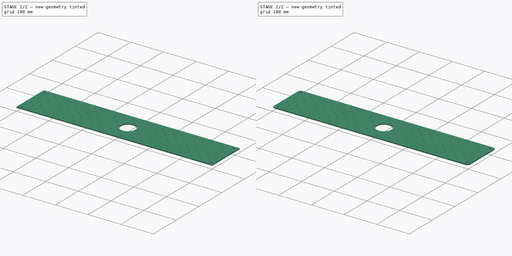
[diagram: build sequence overview — one tinted view per stage of 2, left to right]
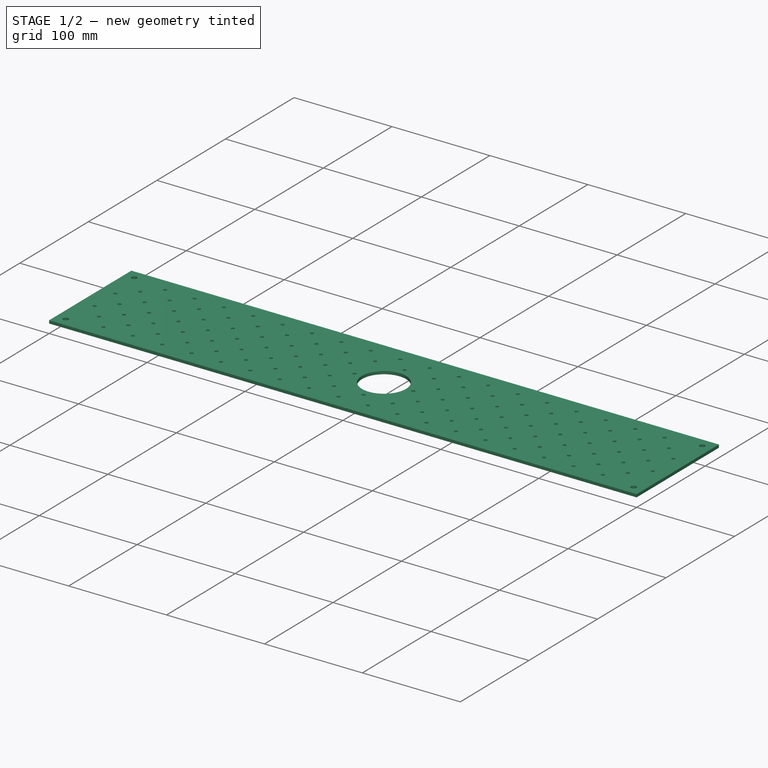
[diagram: stage 1 of 2 — iso view after this stage's code; geometry added in this stage tinted green]
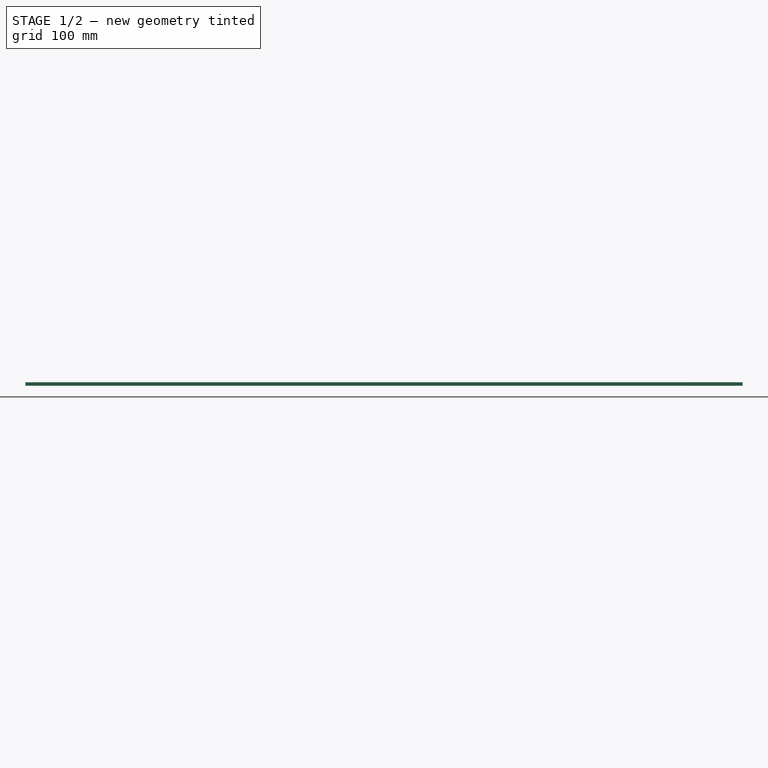
[diagram: stage 1 of 2 — front view after this stage's code; geometry added in this stage tinted green]
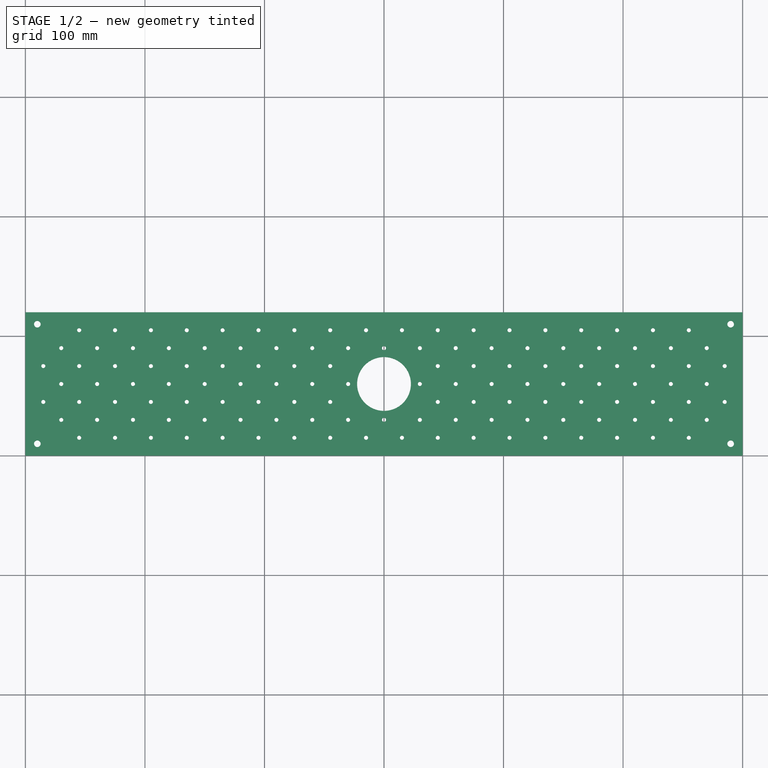
[diagram: stage 1 of 2 — top view after this stage's code; geometry added in this stage tinted green]
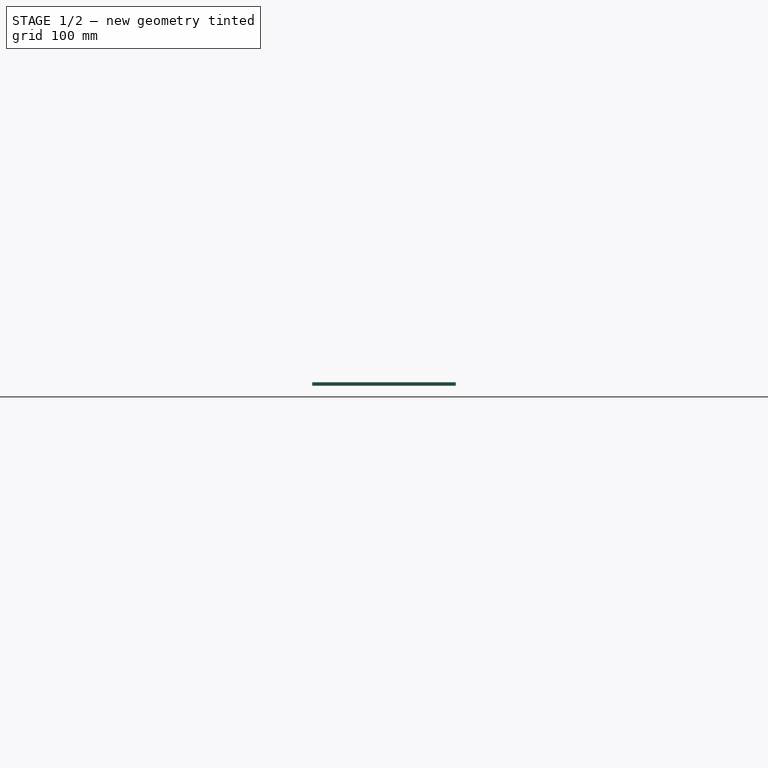
[diagram: stage 1 of 2 — right view after this stage's code; geometry added in this stage tinted green]
FCSTD DOCUMENT  (FreeCAD 0.19R24291 (Git))
Label: CSM-0001_staging-plate
License: All rights reserved
LicenseURL: http://en.wikipedia.org/wiki/All_rights_reserved
objects: Part::Part2DObjectPython×2, Sketcher::SketchObject×1, PartDesign::Pad×1, PartDesign::Chamfer×1, Spreadsheet::Sheet×1, PartDesign::Body×1
note: 8 computed .brp shape members not serialized (recipe doc carries the construction recipe); baked Part::Feature solids carry a one-line shape summary decoded from their .brp

FEATURE [Sketcher::SketchObject] Sketch
  FullyConstrained = false
  MapMode = 5
  Support = -> [XY_Plane]
  expr: Constraints[27] = <<dims>>.peek
  expr: Constraints[30] = <<dims>>.peek
  sketch-geometry (282):
    g0: LineSegment StartX=0 StartY=0 StartZ=0 EndX=600 EndY=0 EndZ=0
    g1: LineSegment StartX=600 StartY=0 StartZ=0 EndX=600 EndY=120 EndZ=0
    g2: LineSegment StartX=600 StartY=120 StartZ=0 EndX=0 EndY=120 EndZ=0
    g3: LineSegment StartX=0 StartY=120 StartZ=0 EndX=0 EndY=0 EndZ=0
    g4: Circle CenterX=10 CenterY=10 CenterZ=0 NormalX=0 NormalY=0 NormalZ=1 AngleXU=0 Radius=2.75
    g5: Circle CenterX=10 CenterY=110 CenterZ=0 NormalX=0 NormalY=0 NormalZ=1 AngleXU=0 Radius=2.75
    g6: Circle CenterX=590 CenterY=110 CenterZ=0 NormalX=0 NormalY=0 NormalZ=1 AngleXU=0 Radius=2.75
    g7: Circle CenterX=590 CenterY=10 CenterZ=0 NormalX=0 NormalY=0 NormalZ=1 AngleXU=0 Radius=2.75
    g8: Circle CenterX=15 CenterY=105 CenterZ=0 NormalX=0 NormalY=0 NormalZ=1 AngleXU=0 Radius=1.7
    g9: Circle CenterX=30 CenterY=90 CenterZ=0 NormalX=0 NormalY=0 NormalZ=1 AngleXU=0 Radius=1.7
    g10: Circle CenterX=300 CenterY=60 CenterZ=0 NormalX=0 NormalY=0 NormalZ=1 AngleXU=0 Radius=22.5
    g11: LineSegment StartX=300 StartY=120 StartZ=0 EndX=300 EndY=0 EndZ=0
    g12: Circle CenterX=45 CenterY=105 CenterZ=0 NormalX=0 NormalY=0 NormalZ=1 AngleXU=0 Radius=1.7
    g13: LineSegment StartX=15 StartY=105 StartZ=0 EndX=45 EndY=105 EndZ=0
    g14: Circle CenterX=75 CenterY=105 CenterZ=0 NormalX=0 NormalY=0 NormalZ=1 AngleXU=0 Radius=1.7
    g15: LineSegment StartX=45 StartY=105 StartZ=0 EndX=75 EndY=105 EndZ=0
    g16: Circle CenterX=105 CenterY=105 CenterZ=0 NormalX=0 NormalY=0 NormalZ=1 AngleXU=0 Radius=1.7
    g17: LineSegment StartX=75 StartY=105 StartZ=0 EndX=105 EndY=105 EndZ=0
    g18: Circle CenterX=135 CenterY=105 CenterZ=0 NormalX=0 NormalY=0 NormalZ=1 AngleXU=0 Radius=1.7
    g19: LineSegment StartX=105 StartY=105 StartZ=0 EndX=135 EndY=105 EndZ=0
    g20: Circle CenterX=165 CenterY=105 CenterZ=0 NormalX=0 NormalY=0 NormalZ=1 AngleXU=0 Radius=1.7
    g21: LineSegment StartX=135 StartY=105 StartZ=0 EndX=165 EndY=105 EndZ=0
    g22: Circle CenterX=195 CenterY=105 CenterZ=0 NormalX=0 NormalY=0 NormalZ=1 AngleXU=0 Radius=1.7
    g23: LineSegment StartX=165 StartY=105 StartZ=0 EndX=195 EndY=105 EndZ=0
    g24: Circle CenterX=225 CenterY=105 CenterZ=0 NormalX=0 NormalY=0 NormalZ=1 AngleXU=0 Radius=1.7
    g25: LineSegment StartX=195 StartY=105 StartZ=0 EndX=225 EndY=105 EndZ=0
    g26: Circle CenterX=255 CenterY=105 CenterZ=0 NormalX=0 NormalY=0 NormalZ=1 AngleXU=0 Radius=1.7
    g27: LineSegment StartX=225 StartY=105 StartZ=0 EndX=255 EndY=105 EndZ=0
    g28: Circle CenterX=285 CenterY=105 CenterZ=0 NormalX=0 NormalY=0 NormalZ=1 AngleXU=0 Radius=1.7
    g29: LineSegment StartX=255 StartY=105 StartZ=0 EndX=285 EndY=105 EndZ=0
    g30: Circle CenterX=315 CenterY=105 CenterZ=0 NormalX=0 NormalY=0 NormalZ=1 AngleXU=0 Radius=1.7
    g31: LineSegment StartX=285 StartY=105 StartZ=0 EndX=315 EndY=105 EndZ=0
    g32: Circle CenterX=345 CenterY=105 CenterZ=0 NormalX=0 NormalY=0 NormalZ=1 AngleXU=0 Radius=1.7
    g33: LineSegment StartX=315 StartY=105 StartZ=0 EndX=345 EndY=105 EndZ=0
    g34: Circle CenterX=375 CenterY=105 CenterZ=0 NormalX=0 NormalY=0 NormalZ=1 AngleXU=0 Radius=1.7
    g35: LineSegment StartX=345 StartY=105 StartZ=0 EndX=375 EndY=105 EndZ=0
    g36: Circle CenterX=405 CenterY=105 CenterZ=0 NormalX=0 NormalY=0 NormalZ=1 AngleXU=0 Radius=1.7
    g37: LineSegment StartX=375 StartY=105 StartZ=0 EndX=405 EndY=105 EndZ=0
    g38: Circle CenterX=435 CenterY=105 CenterZ=0 NormalX=0 NormalY=0 NormalZ=1 AngleXU=0 Radius=1.7
    g39: LineSegment StartX=405 StartY=105 StartZ=0 EndX=435 EndY=105 EndZ=0
    g40: Circle CenterX=465 CenterY=105 CenterZ=0 NormalX=0 NormalY=0 NormalZ=1 AngleXU=0 Radius=1.7
    g41: LineSegment StartX=435 StartY=105 StartZ=0 EndX=465 EndY=105 EndZ=0
    g42: Circle CenterX=495 CenterY=105 CenterZ=0 NormalX=0 NormalY=0 NormalZ=1 AngleXU=0 Radius=1.7
    g43: LineSegment StartX=465 StartY=105 StartZ=0 EndX=495 EndY=105 EndZ=0
    g44: Circle CenterX=525 CenterY=105 CenterZ=0 NormalX=0 NormalY=0 NormalZ=1 AngleXU=0 Radius=1.7
    g45: LineSegment StartX=495 StartY=105 StartZ=0 EndX=525 EndY=105 EndZ=0
    g46: Circle CenterX=555 CenterY=105 CenterZ=0 NormalX=0 NormalY=0 NormalZ=1 AngleXU=0 Radius=1.7
    g47: LineSegment StartX=525 StartY=105 StartZ=0 EndX=555 EndY=105 EndZ=0
    g48: Circle CenterX=585 CenterY=105 CenterZ=0 NormalX=0 NormalY=0 NormalZ=1 AngleXU=0 Radius=1.7
    g49: LineSegment StartX=555 StartY=105 StartZ=0 EndX=585 EndY=105 EndZ=0
    g50: Circle CenterX=15 CenterY=75 CenterZ=0 NormalX=0 NormalY=0 NormalZ=1 AngleXU=0 Radius=1.7
    g51: LineSegment StartX=15 StartY=105 StartZ=0 EndX=15 EndY=75 EndZ=0
    g52: Circle CenterX=45 CenterY=75 CenterZ=0 NormalX=0 NormalY=0 NormalZ=1 AngleXU=0 Radius=1.7
    g53: LineSegment StartX=15 StartY=75 StartZ=0 EndX=45 EndY=75 EndZ=0
    g54: Circle CenterX=75 CenterY=75 CenterZ=0 NormalX=0 NormalY=0 NormalZ=1 AngleXU=0 Radius=1.7
    g55: LineSegment StartX=45 StartY=75 StartZ=0 EndX=75 EndY=75 EndZ=0
    g56: Circle CenterX=105 CenterY=75 CenterZ=0 NormalX=0 NormalY=0 NormalZ=1 AngleXU=0 Radius=1.7
    g57: LineSegment StartX=75 StartY=75 StartZ=0 EndX=105 EndY=75 EndZ=0
    g58: Circle CenterX=135 CenterY=75 CenterZ=0 NormalX=0 NormalY=0 NormalZ=1 AngleXU=0 Radius=1.7
    g59: LineSegment StartX=105 StartY=75 StartZ=0 EndX=135 EndY=75 EndZ=0
    g60: Circle CenterX=165 CenterY=75 CenterZ=0 NormalX=0 NormalY=0 NormalZ=1 AngleXU=0 Radius=1.7
    g61: LineSegment StartX=135 StartY=75 StartZ=0 EndX=165 EndY=75 EndZ=0
    g62: Circle CenterX=195 CenterY=75 CenterZ=0 NormalX=0 NormalY=0 NormalZ=1 AngleXU=0 Radius=1.7
    g63: LineSegment StartX=165 StartY=75 StartZ=0 EndX=195 EndY=75 EndZ=0
    g64: Circle CenterX=225 CenterY=75 CenterZ=0 NormalX=0 NormalY=0 NormalZ=1 AngleXU=0 Radius=1.7
    g65: LineSegment StartX=195 StartY=75 StartZ=0 EndX=225 EndY=75 EndZ=0
    g66: Circle CenterX=255 CenterY=75 CenterZ=0 NormalX=0 NormalY=0 NormalZ=1 AngleXU=0 Radius=1.7
    g67: LineSegment StartX=225 StartY=75 StartZ=0 EndX=255 EndY=75 EndZ=0
    g68: Circle CenterX=285 CenterY=75 CenterZ=0 NormalX=0 NormalY=0 NormalZ=1 AngleXU=0 Radius=1.7
    g69: LineSegment StartX=255 StartY=75 StartZ=0 EndX=285 EndY=75 EndZ=0
    g70: Circle CenterX=315 CenterY=75 CenterZ=0 NormalX=0 NormalY=0 NormalZ=1 AngleXU=0 Radius=1.7
    g71: LineSegment StartX=285 StartY=75 StartZ=0 EndX=315 EndY=75 EndZ=0
    g72: Circle CenterX=345 CenterY=75 CenterZ=0 NormalX=0 NormalY=0 NormalZ=1 AngleXU=0 Radius=1.7
    g73: LineSegment StartX=315 StartY=75 StartZ=0 EndX=345 EndY=75 EndZ=0
    g74: Circle CenterX=375 CenterY=75 CenterZ=0 NormalX=0 NormalY=0 NormalZ=1 AngleXU=0 Radius=1.7
    g75: LineSegment StartX=345 StartY=75 StartZ=0 EndX=375 EndY=75 EndZ=0
    g76: Circle CenterX=405 CenterY=75 CenterZ=0 NormalX=0 NormalY=0 NormalZ=1 AngleXU=0 Radius=1.7
    g77: LineSegment StartX=375 StartY=75 StartZ=0 EndX=405 EndY=75 EndZ=0
    g78: Circle CenterX=435 CenterY=75 CenterZ=0 NormalX=0 NormalY=0 NormalZ=1 AngleXU=0 Radius=1.7
    g79: LineSegment StartX=405 StartY=75 StartZ=0 EndX=435 EndY=75 EndZ=0
    g80: Circle CenterX=465 CenterY=75 CenterZ=0 NormalX=0 NormalY=0 NormalZ=1 AngleXU=0 Radius=1.7
    g81: LineSegment StartX=435 StartY=75 StartZ=0 EndX=465 EndY=75 EndZ=0
    g82: Circle CenterX=495 CenterY=75 CenterZ=0 NormalX=0 NormalY=0 NormalZ=1 AngleXU=0 Radius=1.7
    g83: LineSegment StartX=465 StartY=75 StartZ=0 EndX=495 EndY=75 EndZ=0
    g84: Circle CenterX=525 CenterY=75 CenterZ=0 NormalX=0 NormalY=0 NormalZ=1 AngleXU=0 Radius=1.7
    g85: LineSegment StartX=495 StartY=75 StartZ=0 EndX=525 EndY=75 EndZ=0
    g86: Circle CenterX=555 CenterY=75 CenterZ=0 NormalX=0 NormalY=0 NormalZ=1 AngleXU=0 Radius=1.7
    g87: LineSegment StartX=525 StartY=75 StartZ=0 EndX=555 EndY=75 EndZ=0
    g88: Circle CenterX=585 CenterY=75 CenterZ=0 NormalX=0 NormalY=0 NormalZ=1 AngleXU=0 Radius=1.7
    g89: LineSegment StartX=555 StartY=75 StartZ=0 EndX=585 EndY=75 EndZ=0
    g90: Circle CenterX=15 CenterY=45 CenterZ=0 NormalX=0 NormalY=0 NormalZ=1 AngleXU=0 Radius=1.7
    g91: LineSegment StartX=15 StartY=75 StartZ=0 EndX=15 EndY=45 EndZ=0
    g92: Circle CenterX=45 CenterY=45 CenterZ=0 NormalX=0 NormalY=0 NormalZ=1 AngleXU=0 Radius=1.7
    g93: LineSegment StartX=15 StartY=45 StartZ=0 EndX=45 EndY=45 EndZ=0
    g94: Circle CenterX=75 CenterY=45 CenterZ=0 NormalX=0 NormalY=0 NormalZ=1 AngleXU=0 Radius=1.7
    g95: LineSegment StartX=45 StartY=45 StartZ=0 EndX=75 EndY=45 EndZ=0
    g96: Circle CenterX=105 CenterY=45 CenterZ=0 NormalX=0 NormalY=0 NormalZ=1 AngleXU=0 Radius=1.7
    g97: LineSegment StartX=75 StartY=45 StartZ=0 EndX=105 EndY=45 EndZ=0
    g98: Circle CenterX=135 CenterY=45 CenterZ=0 NormalX=0 NormalY=0 NormalZ=1 AngleXU=0 Radius=1.7
    g99: LineSegment StartX=105 StartY=45 StartZ=0 EndX=135 EndY=45 EndZ=0
    g100: Circle CenterX=165 CenterY=45 CenterZ=0 NormalX=0 NormalY=0 NormalZ=1 AngleXU=0 Radius=1.7
    g101: LineSegment StartX=135 StartY=45 StartZ=0 EndX=165 EndY=45 EndZ=0
    g102: Circle CenterX=195 CenterY=45 CenterZ=0 NormalX=0 NormalY=0 NormalZ=1 AngleXU=0 Radius=1.7
    g103: LineSegment StartX=165 StartY=45 StartZ=0 EndX=195 EndY=45 EndZ=0
    g104: Circle CenterX=225 CenterY=45 CenterZ=0 NormalX=0 NormalY=0 NormalZ=1 AngleXU=0 Radius=1.7
    g105: LineSegment StartX=195 StartY=45 StartZ=0 EndX=225 EndY=45 EndZ=0
    g106: Circle CenterX=255 CenterY=45 CenterZ=0 NormalX=0 NormalY=0 NormalZ=1 AngleXU=0 Radius=1.7
    g107: LineSegment StartX=225 StartY=45 StartZ=0 EndX=255 EndY=45 EndZ=0
    g108: Circle CenterX=285 CenterY=45 CenterZ=0 NormalX=0 NormalY=0 NormalZ=1 AngleXU=0 Radius=1.7
    g109: LineSegment StartX=255 StartY=45 StartZ=0 EndX=285 EndY=45 EndZ=0
    g110: Circle CenterX=315 CenterY=45 CenterZ=0 NormalX=0 NormalY=0 NormalZ=1 AngleXU=0 Radius=1.7
    g111: LineSegment StartX=285 StartY=45 StartZ=0 EndX=315 EndY=45 EndZ=0
    g112: Circle CenterX=345 CenterY=45 CenterZ=0 NormalX=0 NormalY=0 NormalZ=1 AngleXU=0 Radius=1.7
    g113: LineSegment StartX=315 StartY=45 StartZ=0 EndX=345 EndY=45 EndZ=0
    g114: Circle CenterX=375 CenterY=45 CenterZ=0 NormalX=0 NormalY=0 NormalZ=1 AngleXU=0 Radius=1.7
    g115: LineSegment StartX=345 StartY=45 StartZ=0 EndX=375 EndY=45 EndZ=0
    g116: Circle CenterX=405 CenterY=45 CenterZ=0 NormalX=0 NormalY=0 NormalZ=1 AngleXU=0 Radius=1.7
    g117: LineSegment StartX=375 StartY=45 StartZ=0 EndX=405 EndY=45 EndZ=0
    g118: Circle CenterX=435 CenterY=45 CenterZ=0 NormalX=0 NormalY=0 NormalZ=1 AngleXU=0 Radius=1.7
    g119: LineSegment StartX=405 StartY=45 StartZ=0 EndX=435 EndY=45 EndZ=0
    g120: Circle CenterX=465 CenterY=45 CenterZ=0 NormalX=0 NormalY=0 NormalZ=1 AngleXU=0 Radius=1.7
    g121: LineSegment StartX=435 StartY=45 StartZ=0 EndX=465 EndY=45 EndZ=0
    g122: Circle CenterX=495 CenterY=45 CenterZ=0 NormalX=0 NormalY=0 NormalZ=1 AngleXU=0 Radius=1.7
    g123: LineSegment StartX=465 StartY=45 StartZ=0 EndX=495 EndY=45 EndZ=0
    g124: Circle CenterX=525 CenterY=45 CenterZ=0 NormalX=0 NormalY=0 NormalZ=1 AngleXU=0 Radius=1.7
    g125: LineSegment StartX=495 StartY=45 StartZ=0 EndX=525 EndY=45 EndZ=0
    g126: Circle CenterX=555 CenterY=45 CenterZ=0 NormalX=0 NormalY=0 NormalZ=1 AngleXU=0 Radius=1.7
    g127: LineSegment StartX=525 StartY=45 StartZ=0 EndX=555 EndY=45 EndZ=0
    g128: Circle CenterX=585 CenterY=45 CenterZ=0 NormalX=0 NormalY=0 NormalZ=1 AngleXU=0 Radius=1.7
    g129: LineSegment StartX=555 StartY=45 StartZ=0 EndX=585 EndY=45 EndZ=0
    g130: Circle CenterX=15 CenterY=15 CenterZ=0 NormalX=0 NormalY=0 NormalZ=1 AngleXU=0 Radius=1.7
    g131: LineSegment StartX=15 StartY=45 StartZ=0 EndX=15 EndY=15 EndZ=0
    g132: Circle CenterX=45 CenterY=15 CenterZ=0 NormalX=0 NormalY=0 NormalZ=1 AngleXU=0 Radius=1.7
    g133: LineSegment StartX=15 StartY=15 StartZ=0 EndX=45 EndY=15 EndZ=0
    g134: Circle CenterX=75 CenterY=15 CenterZ=0 NormalX=0 NormalY=0 NormalZ=1 AngleXU=0 Radius=1.7
    g135: LineSegment StartX=45 StartY=15 StartZ=0 EndX=75 EndY=15 EndZ=0
    g136: Circle CenterX=105 CenterY=15 CenterZ=0 NormalX=0 NormalY=0 NormalZ=1 AngleXU=0 Radius=1.7
    g137: LineSegment StartX=75 StartY=15 StartZ=0 EndX=105 EndY=15 EndZ=0
    g138: Circle CenterX=135 CenterY=15 CenterZ=0 NormalX=0 NormalY=0 NormalZ=1 AngleXU=0 Radius=1.7
    g139: LineSegment StartX=105 StartY=15 StartZ=0 EndX=135 EndY=15 EndZ=0
    g140: Circle CenterX=165 CenterY=15 CenterZ=0 NormalX=0 NormalY=0 NormalZ=1 AngleXU=0 Radius=1.7
    g141: LineSegment StartX=135 StartY=15 StartZ=0 EndX=165 EndY=15 EndZ=0
    g142: Circle CenterX=195 CenterY=15 CenterZ=0 NormalX=0 NormalY=0 NormalZ=1 AngleXU=0 Radius=1.7
    g143: LineSegment StartX=165 StartY=15 StartZ=0 EndX=195 EndY=15 EndZ=0
    g144: Circle CenterX=225 CenterY=15 CenterZ=0 NormalX=0 NormalY=0 NormalZ=1 AngleXU=0 Radius=1.7
    g145: LineSegment StartX=195 StartY=15 StartZ=0 EndX=225 EndY=15 EndZ=0
    g146: Circle CenterX=255 CenterY=15 CenterZ=0 NormalX=0 NormalY=0 NormalZ=1 AngleXU=0 Radius=1.7
    g147: LineSegment StartX=225 StartY=15 StartZ=0 EndX=255 EndY=15 EndZ=0
    g148: Circle CenterX=285 CenterY=15 CenterZ=0 NormalX=0 NormalY=0 NormalZ=1 AngleXU=0 Radius=1.7
    g149: LineSegment StartX=255 StartY=15 StartZ=0 EndX=285 EndY=15 EndZ=0
    g150: Circle CenterX=315 CenterY=15 CenterZ=0 NormalX=0 NormalY=0 NormalZ=1 AngleXU=0 Radius=1.7
    g151: LineSegment StartX=285 StartY=15 StartZ=0 EndX=315 EndY=15 EndZ=0
    g152: Circle CenterX=345 CenterY=15 CenterZ=0 NormalX=0 NormalY=0 NormalZ=1 AngleXU=0 Radius=1.7
    g153: LineSegment StartX=315 StartY=15 StartZ=0 EndX=345 EndY=15 EndZ=0
    g154: Circle CenterX=375 CenterY=15 CenterZ=0 NormalX=0 NormalY=0 NormalZ=1 AngleXU=0 Radius=1.7
    g155: LineSegment StartX=345 StartY=15 StartZ=0 EndX=375 EndY=15 EndZ=0
    g156: Circle CenterX=405 CenterY=15 CenterZ=0 NormalX=0 NormalY=0 NormalZ=1 AngleXU=0 Radius=1.7
    g157: LineSegment StartX=375 StartY=15 StartZ=0 EndX=405 EndY=15 EndZ=0
    g158: Circle CenterX=435 CenterY=15 CenterZ=0 NormalX=0 NormalY=0 NormalZ=1 AngleXU=0 Radius=1.7
    g159: LineSegment StartX=405 StartY=15 StartZ=0 EndX=435 EndY=15 EndZ=0
    g160: Circle CenterX=465 CenterY=15 CenterZ=0 NormalX=0 NormalY=0 NormalZ=1 AngleXU=0 Radius=1.7
    g161: LineSegment StartX=435 StartY=15 StartZ=0 EndX=465 EndY=15 EndZ=0
    g162: Circle CenterX=495 CenterY=15 CenterZ=0 NormalX=0 NormalY=0 NormalZ=1 AngleXU=0 Radius=1.7
    g163: LineSegment StartX=465 StartY=15 StartZ=0 EndX=495 EndY=15 EndZ=0
    g164: Circle CenterX=525 CenterY=15 CenterZ=0 NormalX=0 NormalY=0 NormalZ=1 AngleXU=0 Radius=1.7
    g165: LineSegment StartX=495 StartY=15 StartZ=0 EndX=525 EndY=15 EndZ=0
    g166: Circle CenterX=555 CenterY=15 CenterZ=0 NormalX=0 NormalY=0 NormalZ=1 AngleXU=0 Radius=1.7
    g167: LineSegment StartX=525 StartY=15 StartZ=0 EndX=555 EndY=15 EndZ=0
    g168: Circle CenterX=585 CenterY=15 CenterZ=0 NormalX=0 NormalY=0 NormalZ=1 AngleXU=0 Radius=1.7
    g169: LineSegment StartX=555 StartY=15 StartZ=0 EndX=585 EndY=15 EndZ=0
    g170: Circle CenterX=60 CenterY=90 CenterZ=0 NormalX=0 NormalY=0 NormalZ=1 AngleXU=0 Radius=1.7
    g171: LineSegment StartX=30 StartY=90 StartZ=0 EndX=60 EndY=90 EndZ=0
    g172: Circle CenterX=90 CenterY=90 CenterZ=0 NormalX=0 NormalY=0 NormalZ=1 AngleXU=0 Radius=1.7
    g173: LineSegment StartX=60 StartY=90 StartZ=0 EndX=90 EndY=90 EndZ=0
    g174: Circle CenterX=120 CenterY=90 CenterZ=0 NormalX=0 NormalY=0 NormalZ=1 AngleXU=0 Radius=1.7
    g175: LineSegment StartX=90 StartY=90 StartZ=0 EndX=120 EndY=90 EndZ=0
    g176: Circle CenterX=150 CenterY=90 CenterZ=0 NormalX=0 NormalY=0 NormalZ=1 AngleXU=0 Radius=1.7
    g177: LineSegment StartX=120 StartY=90 StartZ=0 EndX=150 EndY=90 EndZ=0
    g178: Circle CenterX=180 CenterY=90 CenterZ=0 NormalX=0 NormalY=0 NormalZ=1 AngleXU=0 Radius=1.7
    g179: LineSegment StartX=150 StartY=90 StartZ=0 EndX=180 EndY=90 EndZ=0
    g180: Circle CenterX=210 CenterY=90 CenterZ=0 NormalX=0 NormalY=0 NormalZ=1 AngleXU=0 Radius=1.7
    g181: LineSegment StartX=180 StartY=90 StartZ=0 EndX=210 EndY=90 EndZ=0
    g182: Circle CenterX=240 CenterY=90 CenterZ=0 NormalX=0 NormalY=0 NormalZ=1 AngleXU=0 Radius=1.7
    g183: LineSegment StartX=210 StartY=90 StartZ=0 EndX=240 EndY=90 EndZ=0
    g184: Circle CenterX=270 CenterY=90 CenterZ=0 NormalX=0 NormalY=0 NormalZ=1 AngleXU=0 Radius=1.7
    g185: LineSegment StartX=240 StartY=90 StartZ=0 EndX=270 EndY=90 EndZ=0
    g186: Circle CenterX=300 CenterY=90 CenterZ=0 NormalX=0 NormalY=0 NormalZ=1 AngleXU=0 Radius=1.7
    g187: LineSegment StartX=270 StartY=90 StartZ=0 EndX=300 EndY=90 EndZ=0
    g188: Circle CenterX=330 CenterY=90 CenterZ=0 NormalX=0 NormalY=0 NormalZ=1 AngleXU=0 Radius=1.7
    g189: LineSegment StartX=300 StartY=90 StartZ=0 EndX=330 EndY=90 EndZ=0
    g190: Circle CenterX=360 CenterY=90 CenterZ=0 NormalX=0 NormalY=0 NormalZ=1 AngleXU=0 Radius=1.7
    g191: LineSegment StartX=330 StartY=90 StartZ=0 EndX=360 EndY=90 EndZ=0
    g192: Circle CenterX=390 CenterY=90 CenterZ=0 NormalX=0 NormalY=0 NormalZ=1 AngleXU=0 Radius=1.7
    g193: LineSegment StartX=360 StartY=90 StartZ=0 EndX=390 EndY=90 EndZ=0
    g194: Circle CenterX=420 CenterY=90 CenterZ=0 NormalX=0 NormalY=0 NormalZ=1 AngleXU=0 Radius=1.7
    g195: LineSegment StartX=390 StartY=90 StartZ=0 EndX=420 EndY=90 EndZ=0
    g196: Circle CenterX=450 CenterY=90 CenterZ=0 NormalX=0 NormalY=0 NormalZ=1 AngleXU=0 Radius=1.7
    g197: LineSegment StartX=420 StartY=90 StartZ=0 EndX=450 EndY=90 EndZ=0
    g198: Circle CenterX=480 CenterY=90 CenterZ=0 NormalX=0 NormalY=0 NormalZ=1 AngleXU=0 Radius=1.7
    g199: LineSegment StartX=450 StartY=90 StartZ=0 EndX=480 EndY=90 EndZ=0
    g200: Circle CenterX=510 CenterY=90 CenterZ=0 NormalX=0 NormalY=0 NormalZ=1 AngleXU=0 Radius=1.7
    g201: LineSegment StartX=480 StartY=90 StartZ=0 EndX=510 EndY=90 EndZ=0
    g202: Circle CenterX=540 CenterY=90 CenterZ=0 NormalX=0 NormalY=0 NormalZ=1 AngleXU=0 Radius=1.7
    g203: LineSegment StartX=510 StartY=90 StartZ=0 EndX=540 EndY=90 EndZ=0
    g204: Circle CenterX=570 CenterY=90 CenterZ=0 NormalX=0 NormalY=0 NormalZ=1 AngleXU=0 Radius=1.7
    g205: LineSegment StartX=540 StartY=90 StartZ=0 EndX=570 EndY=90 EndZ=0
    g206: Circle CenterX=30 CenterY=60 CenterZ=0 NormalX=0 NormalY=0 NormalZ=1 AngleXU=0 Radius=1.7
    g207: LineSegment StartX=30 StartY=90 StartZ=0 EndX=30 EndY=60 EndZ=0
    g208: Circle CenterX=60 CenterY=60 CenterZ=0 NormalX=0 NormalY=0 NormalZ=1 AngleXU=0 Radius=1.7
    g209: LineSegment StartX=30 StartY=60 StartZ=0 EndX=60 EndY=60 EndZ=0
    g210: Circle CenterX=90 CenterY=60 CenterZ=0 NormalX=0 NormalY=0 NormalZ=1 AngleXU=0 Radius=1.7
    g211: LineSegment StartX=60 StartY=60 StartZ=0 EndX=90 EndY=60 EndZ=0
    g212: Circle CenterX=120 CenterY=60 CenterZ=0 NormalX=0 NormalY=0 NormalZ=1 AngleXU=0 Radius=1.7
    g213: LineSegment StartX=90 StartY=60 StartZ=0 EndX=120 EndY=60 EndZ=0
    g214: Circle CenterX=150 CenterY=60 CenterZ=0 NormalX=0 NormalY=0 NormalZ=1 AngleXU=0 Radius=1.7
    g215: LineSegment StartX=120 StartY=60 StartZ=0 EndX=150 EndY=60 EndZ=0
    g216: Circle CenterX=180 CenterY=60 CenterZ=0 NormalX=0 NormalY=0 NormalZ=1 AngleXU=0 Radius=1.7
    g217: LineSegment StartX=150 StartY=60 StartZ=0 EndX=180 EndY=60 EndZ=0
    g218: Circle CenterX=210 CenterY=60 CenterZ=0 NormalX=0 NormalY=0 NormalZ=1 AngleXU=0 Radius=1.7
    g219: LineSegment StartX=180 StartY=60 StartZ=0 EndX=210 EndY=60 EndZ=0
    g220: Circle CenterX=240 CenterY=60 CenterZ=0 NormalX=0 NormalY=0 NormalZ=1 AngleXU=0 Radius=1.7
    g221: LineSegment StartX=210 StartY=60 StartZ=0 EndX=240 EndY=60 EndZ=0
    g222: Circle CenterX=270 CenterY=60 CenterZ=0 NormalX=0 NormalY=0 NormalZ=1 AngleXU=0 Radius=1.7
    g223: LineSegment StartX=240 StartY=60 StartZ=0 EndX=270 EndY=60 EndZ=0
    g224: Circle CenterX=300 CenterY=60 CenterZ=0 NormalX=0 NormalY=0 NormalZ=1 AngleXU=0 Radius=1.7
    g225: LineSegment StartX=270 StartY=60 StartZ=0 EndX=300 EndY=60 EndZ=0
    g226: Circle CenterX=330 CenterY=60 CenterZ=0 NormalX=0 NormalY=0 NormalZ=1 AngleXU=0 Radius=1.7
    g227: LineSegment StartX=300 StartY=60 StartZ=0 EndX=330 EndY=60 EndZ=0
    g228: Circle CenterX=360 CenterY=60 CenterZ=0 NormalX=0 NormalY=0 NormalZ=1 AngleXU=0 Radius=1.7
    g229: LineSegment StartX=330 StartY=60 StartZ=0 EndX=360 EndY=60 EndZ=0
    g230: Circle CenterX=390 CenterY=60 CenterZ=0 NormalX=0 NormalY=0 NormalZ=1 AngleXU=0 Radius=1.7
    g231: LineSegment StartX=360 StartY=60 StartZ=0 EndX=390 EndY=60 EndZ=0
    g232: Circle CenterX=420 CenterY=60 CenterZ=0 NormalX=0 NormalY=0 NormalZ=1 AngleXU=0 Radius=1.7
    g233: LineSegment StartX=390 StartY=60 StartZ=0 EndX=420 EndY=60 EndZ=0
    g234: Circle CenterX=450 CenterY=60 CenterZ=0 NormalX=0 NormalY=0 NormalZ=1 AngleXU=0 Radius=1.7
    g235: LineSegment StartX=420 StartY=60 StartZ=0 EndX=450 EndY=60 EndZ=0
    g236: Circle CenterX=480 CenterY=60 CenterZ=0 NormalX=0 NormalY=0 NormalZ=1 AngleXU=0 Radius=1.7
    g237: LineSegment StartX=450 StartY=60 StartZ=0 EndX=480 EndY=60 EndZ=0
    g238: Circle CenterX=510 CenterY=60 CenterZ=0 NormalX=0 NormalY=0 NormalZ=1 AngleXU=0 Radius=1.7
    g239: LineSegment StartX=480 StartY=60 StartZ=0 EndX=510 EndY=60 EndZ=0
    g240: Circle CenterX=540 CenterY=60 CenterZ=0 NormalX=0 NormalY=0 NormalZ=1 AngleXU=0 Radius=1.7
    g241: LineSegment StartX=510 StartY=60 StartZ=0 EndX=540 EndY=60 EndZ=0
    g242: Circle CenterX=570 CenterY=60 CenterZ=0 NormalX=0 NormalY=0 NormalZ=1 AngleXU=0 Radius=1.7
    g243: LineSegment StartX=540 StartY=60 StartZ=0 EndX=570 EndY=60 EndZ=0
    g244: Circle CenterX=30 CenterY=30 CenterZ=0 NormalX=0 NormalY=0 NormalZ=1 AngleXU=0 Radius=1.7
    g245: LineSegment StartX=30 StartY=60 StartZ=0 EndX=30 EndY=30 EndZ=0
    g246: Circle CenterX=60 CenterY=30 CenterZ=0 NormalX=0 NormalY=0 NormalZ=1 AngleXU=0 Radius=1.7
    g247: LineSegment StartX=30 StartY=30 StartZ=0 EndX=60 EndY=30 EndZ=0
    g248: Circle CenterX=90 CenterY=30 CenterZ=0 NormalX=0 NormalY=0 NormalZ=1 AngleXU=0 Radius=1.7
    g249: LineSegment StartX=60 StartY=30 StartZ=0 EndX=90 EndY=30 EndZ=0
    g250: Circle CenterX=120 CenterY=30 CenterZ=0 NormalX=0 NormalY=0 NormalZ=1 AngleXU=0 Radius=1.7
    g251: LineSegment StartX=90 StartY=30 StartZ=0 EndX=120 EndY=30 EndZ=0
    g252: Circle CenterX=150 CenterY=30 CenterZ=0 NormalX=0 NormalY=0 NormalZ=1 AngleXU=0 Radius=1.7
    g253: LineSegment StartX=120 StartY=30 StartZ=0 EndX=150 EndY=30 EndZ=0
    g254: Circle CenterX=180 CenterY=30 CenterZ=0 NormalX=0 NormalY=0 NormalZ=1 AngleXU=0 Radius=1.7
    g255: LineSegment StartX=150 StartY=30 StartZ=0 EndX=180 EndY=30 EndZ=0
    g256: Circle CenterX=210 CenterY=30 CenterZ=0 NormalX=0 NormalY=0 NormalZ=1 AngleXU=0 Radius=1.7
    g257: LineSegment StartX=180 StartY=30 StartZ=0 EndX=210 EndY=30 EndZ=0
    g258: Circle CenterX=240 CenterY=30 CenterZ=0 NormalX=0 NormalY=0 NormalZ=1 AngleXU=0 Radius=1.7
    g259: LineSegment StartX=210 StartY=30 StartZ=0 EndX=240 EndY=30 EndZ=0
    g260: Circle CenterX=270 CenterY=30 CenterZ=0 NormalX=0 NormalY=0 NormalZ=1 AngleXU=0 Radius=1.7
    g261: LineSegment StartX=240 StartY=30 StartZ=0 EndX=270 EndY=30 EndZ=0
    g262: Circle CenterX=300 CenterY=30 CenterZ=0 NormalX=0 NormalY=0 NormalZ=1 AngleXU=0 Radius=1.7
    g263: LineSegment StartX=270 StartY=30 StartZ=0 EndX=300 EndY=30 EndZ=0
    g264: Circle CenterX=330 CenterY=30 CenterZ=0 NormalX=0 NormalY=0 NormalZ=1 AngleXU=0 Radius=1.7
    g265: LineSegment StartX=300 StartY=30 StartZ=0 EndX=330 EndY=30 EndZ=0
    g266: Circle CenterX=360 CenterY=30 CenterZ=0 NormalX=0 NormalY=0 NormalZ=1 AngleXU=0 Radius=1.7
    g267: LineSegment StartX=330 StartY=30 StartZ=0 EndX=360 EndY=30 EndZ=0
    g268: Circle CenterX=390 CenterY=30 CenterZ=0 NormalX=0 NormalY=0 NormalZ=1 AngleXU=0 Radius=1.7
    g269: LineSegment StartX=360 StartY=30 StartZ=0 EndX=390 EndY=30 EndZ=0
    g270: Circle CenterX=420 CenterY=30 CenterZ=0 NormalX=0 NormalY=0 NormalZ=1 AngleXU=0 Radius=1.7
    g271: LineSegment StartX=390 StartY=30 StartZ=0 EndX=420 EndY=30 EndZ=0
    g272: Circle CenterX=450 CenterY=30 CenterZ=0 NormalX=0 NormalY=0 NormalZ=1 AngleXU=0 Radius=1.7
    g273: LineSegment StartX=420 StartY=30 StartZ=0 EndX=450 EndY=30 EndZ=0
    g274: Circle CenterX=480 CenterY=30 CenterZ=0 NormalX=0 NormalY=0 NormalZ=1 AngleXU=0 Radius=1.7
    g275: LineSegment StartX=450 StartY=30 StartZ=0 EndX=480 EndY=30 EndZ=0
    g276: Circle CenterX=510 CenterY=30 CenterZ=0 NormalX=0 NormalY=0 NormalZ=1 AngleXU=0 Radius=1.7
    g277: LineSegment StartX=480 StartY=30 StartZ=0 EndX=510 EndY=30 EndZ=0
    g278: Circle CenterX=540 CenterY=30 CenterZ=0 NormalX=0 NormalY=0 NormalZ=1 AngleXU=0 Radius=1.7
    g279: LineSegment StartX=510 StartY=30 StartZ=0 EndX=540 EndY=30 EndZ=0
    g280: Circle CenterX=570 CenterY=30 CenterZ=0 NormalX=0 NormalY=0 NormalZ=1 AngleXU=0 Radius=1.7
    g281: LineSegment StartX=540 StartY=30 StartZ=0 EndX=570 EndY=30 EndZ=0
  constraints (710):
    c: Coincident(g0,g1)
    c: Coincident(g1,g2)
    c: Coincident(g2,g3)
    c: Coincident(g3,g0)
    c: Horizontal(g0)
    c: Horizontal(g2)
    c: Vertical(g1)
    c: Vertical(g3)
    c: Coincident(g0,g-1)
    c: Distance(g2) = 600
    c: Distance(g3) = 120
    c: Radius(g4) = 2.75
    c: Distance(g4,g3) = 10
    c: Distance(g4,g0) = 10
    c: Radius(g5) = 2.75
    c: Distance(g5,g2) = 10
    c: Distance(g5,g3) = 10
    c: Radius(g6) = 2.75
    c: Distance(g6,g1) = 10
    c: Distance(g6,g2) = 10
    c: Radius(g7) = 2.75
    c: Distance(g7,g1) = 10
    c: Distance(g7,g0) = 10
    c: Distance(g8,g2) = 15
    c: Distance(g8,g3) = 15
    c: PointOnObject(g11,g2)
    c: PointOnObject(g11,g0)
    c: Diameter(g8) = 3.4
    c: DistanceX(g8,g9) = 15
    c: DistanceY(g9,g8) = 15
    c: Diameter(g9) = 3.4
    c: Diameter(g10) = 45
    c: DistanceY(g10,g2) = 60
    c: Symmetric(g2,g1,g11)
    c: PointOnObject(g10,g11)
    c: Equal(g8,g12) = 3.4
    c: Coincident(g8,g13)
    c: Coincident(g12,g13)
    c: Equal(g8,g14) = 3.4
    c: Coincident(g12,g15)
    c: Coincident(g14,g15)
    c: Equal(g13,g15)
    c: Parallel(g15,g13)
    c: Equal(g8,g16) = 3.4
    c: Coincident(g14,g17)
    c: Coincident(g16,g17)
    c: Equal(g13,g17)
    c: Parallel(g17,g13)
    c: Equal(g8,g18) = 3.4
    c: Coincident(g16,g19)
    c: Coincident(g18,g19)
    c: Equal(g13,g19)
    c: Parallel(g19,g13)
    c: Equal(g8,g20) = 3.4
    c: Coincident(g18,g21)
    c: Coincident(g20,g21)
    c: Equal(g13,g21)
    c: Parallel(g21,g13)
    c: Equal(g8,g22) = 3.4
    c: Coincident(g20,g23)
    c: Coincident(g22,g23)
    c: Equal(g13,g23)
    c: Parallel(g23,g13)
    c: Equal(g8,g24) = 3.4
    c: Coincident(g22,g25)
    c: Coincident(g24,g25)
    c: Equal(g13,g25)
    c: Parallel(g25,g13)
    c: Equal(g8,g26) = 3.4
    c: Coincident(g24,g27)
    c: Coincident(g26,g27)
    c: Equal(g13,g27)
    c: Parallel(g27,g13)
    c: Equal(g8,g28) = 3.4
    c: Coincident(g26,g29)
    c: Coincident(g28,g29)
    c: Equal(g13,g29)
    c: Parallel(g29,g13)
    c: Equal(g8,g30) = 3.4
    c: Coincident(g28,g31)
    c: Coincident(g30,g31)
    c: Equal(g13,g31)
    c: Parallel(g31,g13)
    c: Equal(g8,g32) = 3.4
    c: Coincident(g30,g33)
    c: Coincident(g32,g33)
    c: Equal(g13,g33)
    c: Parallel(g33,g13)
    c: Equal(g8,g34) = 3.4
    c: Coincident(g32,g35)
    c: Coincident(g34,g35)
    c: Equal(g13,g35)
    c: Parallel(g35,g13)
    c: Equal(g8,g36) = 3.4
    c: Coincident(g34,g37)
    c: Coincident(g36,g37)
    c: Equal(g13,g37)
    c: Parallel(g37,g13)
    c: Equal(g8,g38) = 3.4
    c: Coincident(g36,g39)
    c: Coincident(g38,g39)
    c: Equal(g13,g39)
    c: Parallel(g39,g13)
    c: Equal(g8,g40) = 3.4
    c: Coincident(g38,g41)
    c: Coincident(g40,g41)
    c: Equal(g13,g41)
    c: Parallel(g41,g13)
    c: Equal(g8,g42) = 3.4
    c: Coincident(g40,g43)
    c: Coincident(g42,g43)
    c: Equal(g13,g43)
    c: Parallel(g43,g13)
    c: Equal(g8,g44) = 3.4
    c: Coincident(g42,g45)
    c: Coincident(g44,g45)
    c: Equal(g13,g45)
    c: Parallel(g45,g13)
    c: Equal(g8,g46) = 3.4
    c: Coincident(g44,g47)
    c: Coincident(g46,g47)
    c: Equal(g13,g47)
    c: Parallel(g47,g13)
    c: Equal(g8,g48) = 3.4
    c: Coincident(g46,g49)
    c: Coincident(g48,g49)
    c: Equal(g13,g49)
    c: Parallel(g49,g13)
    c: Equal(g8,g50) = 3.4
    c: Coincident(g8,g51)
    c: Coincident(g50,g51)
    c: Equal(g51,g13)
    c: Perpendicular(g51,g13)
    c: Equal(g8,g52) = 3.4
    c: Coincident(g50,g53)
    c: Coincident(g52,g53)
    c: Equal(g13,g53)
    c: Parallel(g53,g13)
    c: Equal(g8,g54) = 3.4
    c: Coincident(g52,g55)
    c: Coincident(g54,g55)
    c: Equal(g13,g55)
    c: Parallel(g55,g13)
    c: Equal(g8,g56) = 3.4
    c: Coincident(g54,g57)
    c: Coincident(g56,g57)
    c: Equal(g13,g57)
    c: Parallel(g57,g13)
    c: Equal(g8,g58) = 3.4
    c: Coincident(g56,g59)
    c: Coincident(g58,g59)
    c: Equal(g13,g59)
    c: Parallel(g59,g13)
    c: Equal(g8,g60) = 3.4
    c: Coincident(g58,g61)
    c: Coincident(g60,g61)
    c: Equal(g13,g61)
    c: Parallel(g61,g13)
    c: Equal(g8,g62) = 3.4
    c: Coincident(g60,g63)
    c: Coincident(g62,g63)
    c: Equal(g13,g63)
    c: Parallel(g63,g13)
    c: Equal(g8,g64) = 3.4
    c: Coincident(g62,g65)
    c: Coincident(g64,g65)
    c: Equal(g13,g65)
    c: Parallel(g65,g13)
    c: Equal(g8,g66) = 3.4
    c: Coincident(g64,g67)
    c: Coincident(g66,g67)
    c: Equal(g13,g67)
    c: Parallel(g67,g13)
    c: Equal(g8,g68) = 3.4
    c: Coincident(g66,g69)
    c: Coincident(g68,g69)
    c: Equal(g13,g69)
    c: Parallel(g69,g13)
    c: Equal(g8,g70) = 3.4
    c: Coincident(g68,g71)
    c: Coincident(g70,g71)
    c: Equal(g13,g71)
    c: Parallel(g71,g13)
    c: Equal(g8,g72) = 3.4
    c: Coincident(g70,g73)
    c: Coincident(g72,g73)
    c: Equal(g13,g73)
    c: Parallel(g73,g13)
    c: Equal(g8,g74) = 3.4
    c: Coincident(g72,g75)
    c: Coincident(g74,g75)
    c: Equal(g13,g75)
    c: Parallel(g75,g13)
    c: Equal(g8,g76) = 3.4
    c: Coincident(g74,g77)
    c: Coincident(g76,g77)
    c: Equal(g13,g77)
    c: Parallel(g77,g13)
    c: Equal(g8,g78) = 3.4
    c: Coincident(g76,g79)
    c: Coincident(g78,g79)
    c: Equal(g13,g79)
    c: Parallel(g79,g13)
    c: Equal(g8,g80) = 3.4
    c: Coincident(g78,g81)
    c: Coincident(g80,g81)
    c: Equal(g13,g81)
    c: Parallel(g81,g13)
    c: Equal(g8,g82) = 3.4
    c: Coincident(g80,g83)
    c: Coincident(g82,g83)
    c: Equal(g13,g83)
    c: Parallel(g83,g13)
    c: Equal(g8,g84) = 3.4
    c: Coincident(g82,g85)
    c: Coincident(g84,g85)
    c: Equal(g13,g85)
    c: Parallel(g85,g13)
    c: Equal(g8,g86) = 3.4
    c: Coincident(g84,g87)
    c: Coincident(g86,g87)
    c: Equal(g13,g87)
    c: Parallel(g87,g13)
    c: Equal(g8,g88) = 3.4
    c: Coincident(g86,g89)
    c: Coincident(g88,g89)
    c: Equal(g13,g89)
    c: Parallel(g89,g13)
    c: Equal(g8,g90) = 3.4
    c: Coincident(g50,g91)
    c: Coincident(g90,g91)
    c: Equal(g51,g91)
    c: Perpendicular(g91,g13)
    c: Equal(g8,g92) = 3.4
    c: Coincident(g90,g93)
    c: Coincident(g92,g93)
    c: Equal(g13,g93)
    c: Parallel(g93,g13)
    c: Equal(g8,g94) = 3.4
    c: Coincident(g92,g95)
    c: Coincident(g94,g95)
    c: Equal(g13,g95)
    c: Parallel(g95,g13)
    c: Equal(g8,g96) = 3.4
    c: Coincident(g94,g97)
    c: Coincident(g96,g97)
    c: Equal(g13,g97)
    c: Parallel(g97,g13)
    c: Equal(g8,g98) = 3.4
    c: Coincident(g96,g99)
    c: Coincident(g98,g99)
    c: Equal(g13,g99)
    c: Parallel(g99,g13)
    c: Equal(g8,g100) = 3.4
    c: Coincident(g98,g101)
    c: Coincident(g100,g101)
    c: Equal(g13,g101)
    c: Parallel(g101,g13)
    c: Equal(g8,g102) = 3.4
    c: Coincident(g100,g103)
    c: Coincident(g102,g103)
    c: Equal(g13,g103)
    c: Parallel(g103,g13)
    c: Equal(g8,g104) = 3.4
    c: Coincident(g102,g105)
    c: Coincident(g104,g105)
    c: Equal(g13,g105)
    c: Parallel(g105,g13)
    c: Equal(g8,g106) = 3.4
    c: Coincident(g104,g107)
    c: Coincident(g106,g107)
    c: Equal(g13,g107)
    c: Parallel(g107,g13)
    c: Equal(g8,g108) = 3.4
    c: Coincident(g106,g109)
    c: Coincident(g108,g109)
    c: Equal(g13,g109)
    c: Parallel(g109,g13)
    c: Equal(g8,g110) = 3.4
    c: Coincident(g108,g111)
    c: Coincident(g110,g111)
    c: Equal(g13,g111)
    c: Parallel(g111,g13)
    c: Equal(g8,g112) = 3.4
    c: Coincident(g110,g113)
    c: Coincident(g112,g113)
    c: Equal(g13,g113)
    c: Parallel(g113,g13)
    c: Equal(g8,g114) = 3.4
    c: Coincident(g112,g115)
    c: Coincident(g114,g115)
    c: Equal(g13,g115)
    c: Parallel(g115,g13)
    c: Equal(g8,g116) = 3.4
    c: Coincident(g114,g117)
    c: Coincident(g116,g117)
    c: Equal(g13,g117)
    c: Parallel(g117,g13)
    c: Equal(g8,g118) = 3.4
    c: Coincident(g116,g119)
    c: Coincident(g118,g119)
    c: Equal(g13,g119)
    c: Parallel(g119,g13)
    c: Equal(g8,g120) = 3.4
    c: Coincident(g118,g121)
    c: Coincident(g120,g121)
    c: Equal(g13,g121)
    c: Parallel(g121,g13)
    c: Equal(g8,g122) = 3.4
    c: Coincident(g120,g123)
    c: Coincident(g122,g123)
    c: Equal(g13,g123)
    c: Parallel(g123,g13)
    c: Equal(g8,g124) = 3.4
    c: Coincident(g122,g125)
    c: Coincident(g124,g125)
    c: Equal(g13,g125)
    c: Parallel(g125,g13)
    c: Equal(g8,g126) = 3.4
    c: Coincident(g124,g127)
    c: Coincident(g126,g127)
    c: Equal(g13,g127)
    c: Parallel(g127,g13)
    c: Equal(g8,g128) = 3.4
    c: Coincident(g126,g129)
    c: Coincident(g128,g129)
    c: Equal(g13,g129)
    c: Parallel(g129,g13)
    c: Equal(g8,g130) = 3.4
    c: Coincident(g90,g131)
    c: Coincident(g130,g131)
    c: Equal(g51,g131)
    c: Perpendicular(g131,g13)
    c: Equal(g8,g132) = 3.4
    c: Coincident(g130,g133)
    c: Coincident(g132,g133)
    c: Equal(g13,g133)
    c: Parallel(g133,g13)
    c: Equal(g8,g134) = 3.4
    c: Coincident(g132,g135)
    c: Coincident(g134,g135)
    c: Equal(g13,g135)
    c: Parallel(g135,g13)
    c: Equal(g8,g136) = 3.4
    c: Coincident(g134,g137)
    c: Coincident(g136,g137)
    c: Equal(g13,g137)
    c: Parallel(g137,g13)
    c: Equal(g8,g138) = 3.4
    c: Coincident(g136,g139)
    c: Coincident(g138,g139)
    c: Equal(g13,g139)
    c: Parallel(g139,g13)
    c: Equal(g8,g140) = 3.4
    c: Coincident(g138,g141)
    c: Coincident(g140,g141)
    c: Equal(g13,g141)
    c: Parallel(g141,g13)
    c: Equal(g8,g142) = 3.4
    c: Coincident(g140,g143)
    c: Coincident(g142,g143)
    c: Equal(g13,g143)
    c: Parallel(g143,g13)
    c: Equal(g8,g144) = 3.4
    c: Coincident(g142,g145)
    c: Coincident(g144,g145)
    c: Equal(g13,g145)
    c: Parallel(g145,g13)
    c: Equal(g8,g146) = 3.4
    c: Coincident(g144,g147)
    c: Coincident(g146,g147)
    c: Equal(g13,g147)
    c: Parallel(g147,g13)
    c: Equal(g8,g148) = 3.4
    c: Coincident(g146,g149)
    c: Coincident(g148,g149)
    c: Equal(g13,g149)
    c: Parallel(g149,g13)
    c: Equal(g8,g150) = 3.4
    c: Coincident(g148,g151)
    c: Coincident(g150,g151)
    c: Equal(g13,g151)
    c: Parallel(g151,g13)
    c: Equal(g8,g152) = 3.4
    c: Coincident(g150,g153)
    c: Coincident(g152,g153)
    c: Equal(g13,g153)
    c: Parallel(g153,g13)
    c: Equal(g8,g154) = 3.4
    c: Coincident(g152,g155)
    c: Coincident(g154,g155)
    c: Equal(g13,g155)
    c: Parallel(g155,g13)
    c: Equal(g8,g156) = 3.4
    c: Coincident(g154,g157)
    c: Coincident(g156,g157)
    c: Equal(g13,g157)
    c: Parallel(g157,g13)
    c: Equal(g8,g158) = 3.4
    c: Coincident(g156,g159)
    c: Coincident(g158,g159)
    c: Equal(g13,g159)
    c: Parallel(g159,g13)
    c: Equal(g8,g160) = 3.4
    c: Coincident(g158,g161)
    c: Coincident(g160,g161)
    c: Equal(g13,g161)
    c: Parallel(g161,g13)
    c: Equal(g8,g162) = 3.4
    c: Coincident(g160,g163)
    c: Coincident(g162,g163)
    c: Equal(g13,g163)
    c: Parallel(g163,g13)
    c: Equal(g8,g164) = 3.4
    c: Coincident(g162,g165)
    c: Coincident(g164,g165)
    c: Equal(g13,g165)
    c: Parallel(g165,g13)
    c: Equal(g8,g166) = 3.4
    c: Coincident(g164,g167)
    c: Coincident(g166,g167)
    c: Equal(g13,g167)
    c: Parallel(g167,g13)
    c: Equal(g8,g168) = 3.4
    c: Coincident(g166,g169)
    c: Coincident(g168,g169)
    c: Equal(g13,g169)
    c: Parallel(g169,g13)
    c: Horizontal(g13)
    c: DistanceX(g13,g13) = 30
    c: Equal(g9,g170) = 3.4
    c: Coincident(g9,g171)
    c: Coincident(g170,g171)
    c: Distance(g171) = 30
    c: Equal(g9,g172) = 3.4
    c: Coincident(g170,g173)
    c: Coincident(g172,g173)
    c: Equal(g171,g173)
    c: Parallel(g173,g171)
    c: Equal(g9,g174) = 3.4
    c: Coincident(g172,g175)
    c: Coincident(g174,g175)
    c: Equal(g171,g175)
    c: Parallel(g175,g171)
    c: Equal(g9,g176) = 3.4
    c: Coincident(g174,g177)
    c: Coincident(g176,g177)
    c: Equal(g171,g177)
    c: Parallel(g177,g171)
    c: Equal(g9,g178) = 3.4
    c: Coincident(g176,g179)
    c: Coincident(g178,g179)
    c: Equal(g171,g179)
    c: Parallel(g179,g171)
    c: Equal(g9,g180) = 3.4
    c: Coincident(g178,g181)
    c: Coincident(g180,g181)
    c: Equal(g171,g181)
    c: Parallel(g181,g171)
    c: Equal(g9,g182) = 3.4
    c: Coincident(g180,g183)
    c: Coincident(g182,g183)
    c: Equal(g171,g183)
    c: Parallel(g183,g171)
    c: Equal(g9,g184) = 3.4
    c: Coincident(g182,g185)
    c: Coincident(g184,g185)
    c: Equal(g171,g185)
    c: Parallel(g185,g171)
    c: Equal(g9,g186) = 3.4
    c: Coincident(g184,g187)
    c: Coincident(g186,g187)
    c: Equal(g171,g187)
    c: Parallel(g187,g171)
    c: Equal(g9,g188) = 3.4
    c: Coincident(g186,g189)
    c: Coincident(g188,g189)
    c: Equal(g171,g189)
    c: Parallel(g189,g171)
    c: Equal(g9,g190) = 3.4
    c: Coincident(g188,g191)
    c: Coincident(g190,g191)
    c: Equal(g171,g191)
    c: Parallel(g191,g171)
    c: Equal(g9,g192) = 3.4
    c: Coincident(g190,g193)
    c: Coincident(g192,g193)
    c: Equal(g171,g193)
    c: Parallel(g193,g171)
    c: Equal(g9,g194) = 3.4
    c: Coincident(g192,g195)
    c: Coincident(g194,g195)
    c: Equal(g171,g195)
    c: Parallel(g195,g171)
    c: Equal(g9,g196) = 3.4
    c: Coincident(g194,g197)
    c: Coincident(g196,g197)
    c: Equal(g171,g197)
    c: Parallel(g197,g171)
    c: Equal(g9,g198) = 3.4
    c: Coincident(g196,g199)
    c: Coincident(g198,g199)
    c: Equal(g171,g199)
    c: Parallel(g199,g171)
    c: Equal(g9,g200) = 3.4
    c: Coincident(g198,g201)
    c: Coincident(g200,g201)
    c: Equal(g171,g201)
    c: Parallel(g201,g171)
    c: Equal(g9,g202) = 3.4
    c: Coincident(g200,g203)
    c: Coincident(g202,g203)
    c: Equal(g171,g203)
    c: Parallel(g203,g171)
    c: Equal(g9,g204) = 3.4
    c: Coincident(g202,g205)
    c: Coincident(g204,g205)
    c: Equal(g171,g205)
    c: Parallel(g205,g171)
    c: Equal(g9,g206) = 3.4
    c: Coincident(g9,g207)
    c: Coincident(g206,g207)
    c: Equal(g207,g171)
    c: Perpendicular(g207,g171)
    c: Equal(g9,g208) = 3.4
    c: Coincident(g206,g209)
    c: Coincident(g208,g209)
    c: Equal(g171,g209)
    c: Parallel(g209,g171)
    c: Equal(g9,g210) = 3.4
    c: Coincident(g208,g211)
    c: Coincident(g210,g211)
    c: Equal(g171,g211)
    c: Parallel(g211,g171)
    c: Equal(g9,g212) = 3.4
    c: Coincident(g210,g213)
    c: Coincident(g212,g213)
    c: Equal(g171,g213)
    c: Parallel(g213,g171)
    c: Equal(g9,g214) = 3.4
    c: Coincident(g212,g215)
    c: Coincident(g214,g215)
    c: Equal(g171,g215)
    c: Parallel(g215,g171)
    c: Equal(g9,g216) = 3.4
    c: Coincident(g214,g217)
    c: Coincident(g216,g217)
    c: Equal(g171,g217)
    c: Parallel(g217,g171)
    c: Equal(g9,g218) = 3.4
    c: Coincident(g216,g219)
    c: Coincident(g218,g219)
    c: Equal(g171,g219)
    c: Parallel(g219,g171)
    c: Equal(g9,g220) = 3.4
    c: Coincident(g218,g221)
    c: Coincident(g220,g221)
    c: Equal(g171,g221)
    c: Parallel(g221,g171)
    c: Equal(g9,g222) = 3.4
    c: Coincident(g220,g223)
    c: Coincident(g222,g223)
    c: Equal(g171,g223)
    c: Parallel(g223,g171)
    c: Equal(g9,g224) = 3.4
    c: Coincident(g222,g225)
    c: Coincident(g224,g225)
    c: Equal(g171,g225)
    c: Parallel(g225,g171)
    c: Equal(g9,g226) = 3.4
    c: Coincident(g224,g227)
    c: Coincident(g226,g227)
    c: Equal(g171,g227)
    c: Parallel(g227,g171)
    c: Equal(g9,g228) = 3.4
    c: Coincident(g226,g229)
    c: Coincident(g228,g229)
    c: Equal(g171,g229)
    c: Parallel(g229,g171)
    c: Equal(g9,g230) = 3.4
    c: Coincident(g228,g231)
    c: Coincident(g230,g231)
    c: Equal(g171,g231)
    c: Parallel(g231,g171)
    c: Equal(g9,g232) = 3.4
    c: Coincident(g230,g233)
    c: Coincident(g232,g233)
    c: Equal(g171,g233)
    c: Parallel(g233,g171)
    c: Equal(g9,g234) = 3.4
    c: Coincident(g232,g235)
    c: Coincident(g234,g235)
    c: Equal(g171,g235)
    c: Parallel(g235,g171)
    c: Equal(g9,g236) = 3.4
    c: Coincident(g234,g237)
    c: Coincident(g236,g237)
    c: Equal(g171,g237)
    c: Parallel(g237,g171)
    c: Equal(g9,g238) = 3.4
    c: Coincident(g236,g239)
    c: Coincident(g238,g239)
    c: Equal(g171,g239)
    c: Parallel(g239,g171)
    c: Equal(g9,g240) = 3.4
    c: Coincident(g238,g241)
    c: Coincident(g240,g241)
    c: Equal(g171,g241)
    c: Parallel(g241,g171)
    c: Equal(g9,g242) = 3.4
    c: Coincident(g240,g243)
    c: Coincident(g242,g243)
    c: Equal(g171,g243)
    c: Parallel(g243,g171)
    c: Equal(g9,g244) = 3.4
    c: Coincident(g206,g245)
    c: Coincident(g244,g245)
    c: Equal(g207,g245)
    c: Perpendicular(g245,g171)
    c: Equal(g9,g246) = 3.4
    c: Coincident(g244,g247)
    c: Coincident(g246,g247)
    c: Equal(g171,g247)
    c: Parallel(g247,g171)
    c: Equal(g9,g248) = 3.4
    c: Coincident(g246,g249)
    c: Coincident(g248,g249)
    c: Equal(g171,g249)
    c: Parallel(g249,g171)
    c: Equal(g9,g250) = 3.4
    c: Coincident(g248,g251)
    c: Coincident(g250,g251)
    c: Equal(g171,g251)
    c: Parallel(g251,g171)
    c: Equal(g9,g252) = 3.4
    c: Coincident(g250,g253)
    c: Coincident(g252,g253)
    c: Equal(g171,g253)
    c: Parallel(g253,g171)
    c: Equal(g9,g254) = 3.4
    c: Coincident(g252,g255)
    c: Coincident(g254,g255)
    c: Equal(g171,g255)
    c: Parallel(g255,g171)
    c: Equal(g9,g256) = 3.4
    c: Coincident(g254,g257)
    c: Coincident(g256,g257)
    c: Equal(g171,g257)
    c: Parallel(g257,g171)
    c: Equal(g9,g258) = 3.4
    c: Coincident(g256,g259)
    c: Coincident(g258,g259)
    c: Equal(g171,g259)
    c: Parallel(g259,g171)
    c: Equal(g9,g260) = 3.4
    c: Coincident(g258,g261)
    c: Coincident(g260,g261)
    c: Equal(g171,g261)
    c: Parallel(g261,g171)
    c: Equal(g9,g262) = 3.4
    c: Coincident(g260,g263)
    c: Coincident(g262,g263)
    c: Equal(g171,g263)
    c: Parallel(g263,g171)
    c: Equal(g9,g264) = 3.4
    c: Coincident(g262,g265)
    c: Coincident(g264,g265)
    c: Equal(g171,g265)
    c: Parallel(g265,g171)
    c: Equal(g9,g266) = 3.4
    c: Coincident(g264,g267)
    c: Coincident(g266,g267)
    c: Equal(g171,g267)
    c: Parallel(g267,g171)
    c: Equal(g9,g268) = 3.4
    c: Coincident(g266,g269)
    c: Coincident(g268,g269)
    c: Equal(g171,g269)
    c: Parallel(g269,g171)
    c: Equal(g9,g270) = 3.4
    c: Coincident(g268,g271)
    c: Coincident(g270,g271)
    c: Equal(g171,g271)
    c: Parallel(g271,g171)
    c: Equal(g9,g272) = 3.4
    c: Coincident(g270,g273)
    c: Coincident(g272,g273)
    c: Equal(g171,g273)
    c: Parallel(g273,g171)
    c: Equal(g9,g274) = 3.4
    c: Coincident(g272,g275)
    c: Coincident(g274,g275)
    c: Equal(g171,g275)
    c: Parallel(g275,g171)
    c: Equal(g9,g276) = 3.4
    c: Coincident(g274,g277)
    c: Coincident(g276,g277)
    c: Equal(g171,g277)
    c: Parallel(g277,g171)
    c: Equal(g9,g278) = 3.4
    c: Coincident(g276,g279)
    c: Coincident(g278,g279)
    c: Equal(g171,g279)
    c: Parallel(g279,g171)
    c: Equal(g9,g280) = 3.4
    c: Coincident(g278,g281)
    c: Coincident(g280,g281)
    c: Equal(g171,g281)
    c: Parallel(g281,g171)
    c: Horizontal(g171)
FEATURE [PartDesign::Pad] Pad
  AllowMultiFace = false
  Direction = (1,1,1)
  Length = 3
  Length2 = 100
  Profile = -> Sketch
  Refine = true
  Type = 0
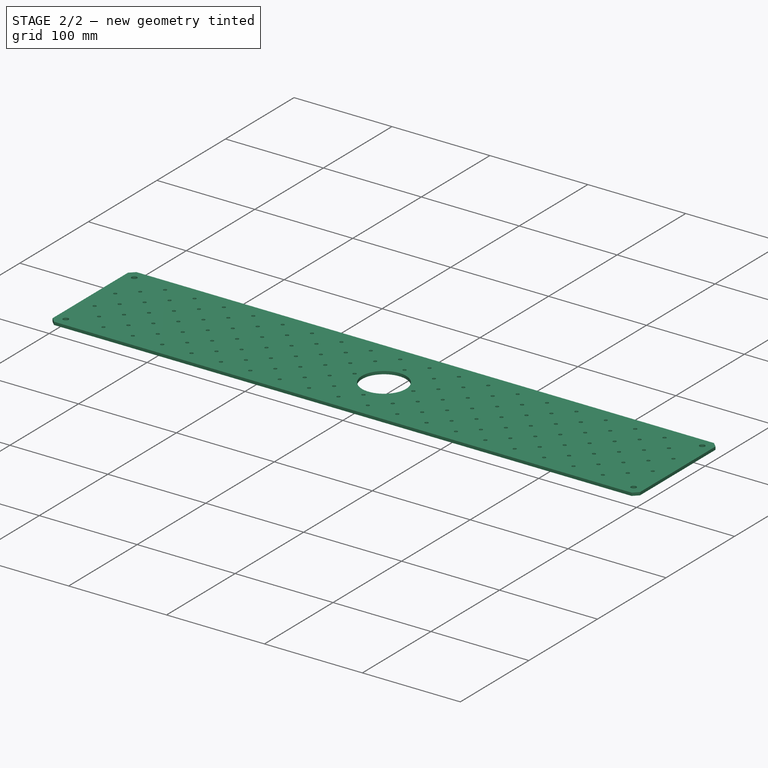
[diagram: stage 2 of 2 — iso view after this stage's code; geometry added in this stage tinted green]
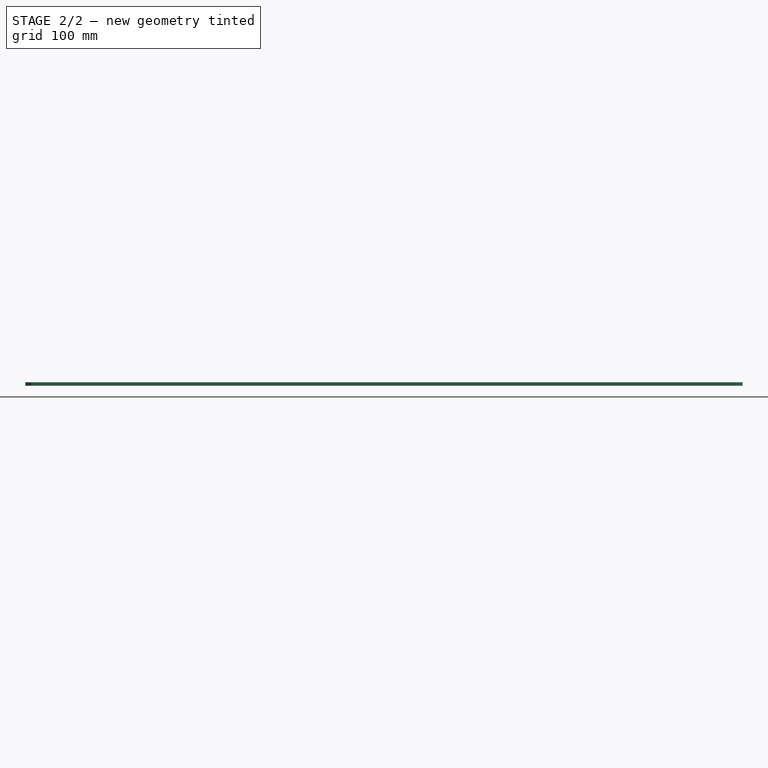
[diagram: stage 2 of 2 — front view after this stage's code; geometry added in this stage tinted green]
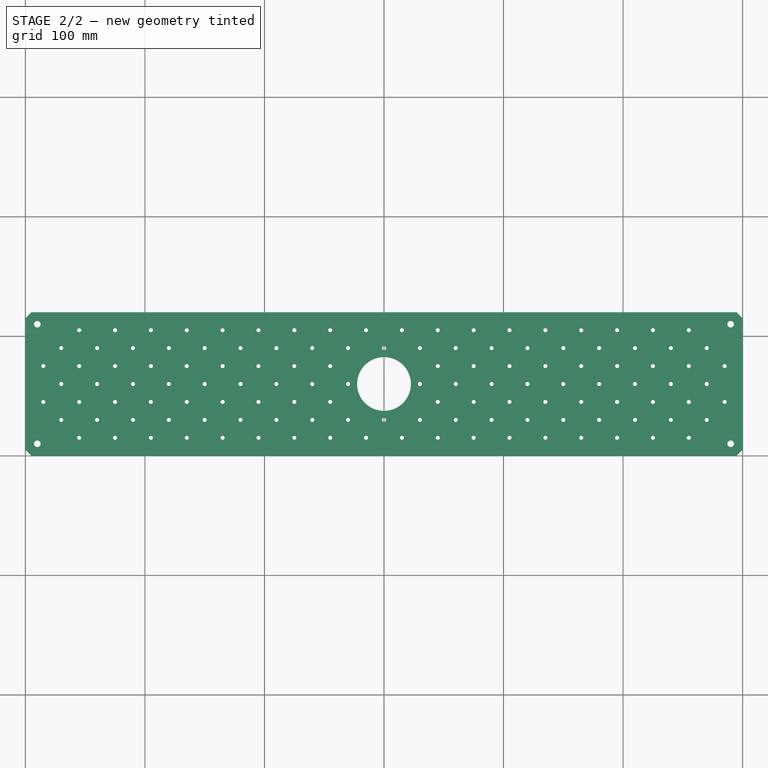
[diagram: stage 2 of 2 — top view after this stage's code; geometry added in this stage tinted green]
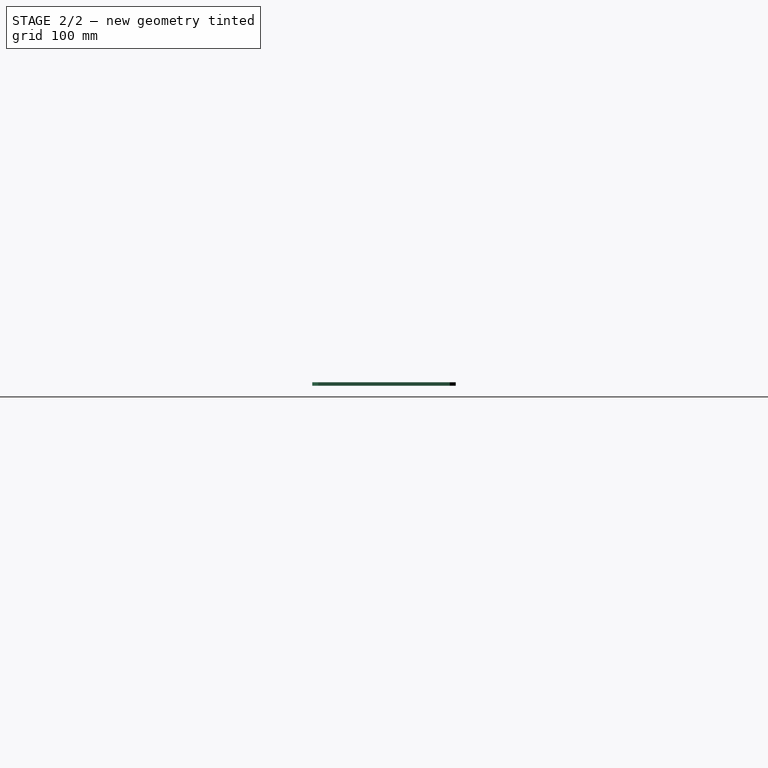
[diagram: stage 2 of 2 — right view after this stage's code; geometry added in this stage tinted green]
FEATURE [PartDesign::Chamfer] Chamfer
  Angle = 45
  Base = -> Pad [Edge2,Edge5,Edge1,Edge8]
  BaseFeature = -> Pad
  ChamferType = 0
  FlipDirection = false
  Size = 5
  Size2 = 1
  SupportTransform = false
FEATURE [Part::Part2DObjectPython] Shape2DView001  label="Shape2DView"  # Draft 2D object (typed FeaturePython)
  Base = -> Chamfer
  HiddenLines = false
  InPlace = true
  Projection = (0,0,1)
  ProjectionMode = 0
  SegmentLength = 0.05
  Tessellation = false
  VisibleOnly = false
FEATURE [Spreadsheet::Sheet] Spreadsheet  label="dims"
  cells = A1=Peek Hole Diameter; B1(peek)=3.4; G6=0
FEATURE [Part::Part2DObjectPython] ShapeString  label="PN"  # Draft 2D object (typed FeaturePython)
  FontFile = <path>
  MapMode = 5
  Placement = pos=(0,0,0) rot=(1,0,0;1.5708rad)
  Size = 5
  String = CSM-0001-00
  Support = -> [XZ_Plane]
  Tracking = 0
FEATURE [PartDesign::Body] Body
  Group = -> [Sketch,Pad,Chamfer,ShapeString,Shape2DView001]
  Origin = -> Origin
  Tip = -> Chamfer
note: 1 file-system path scrubbed to <path> (originals preserved in the JSON sidecar)
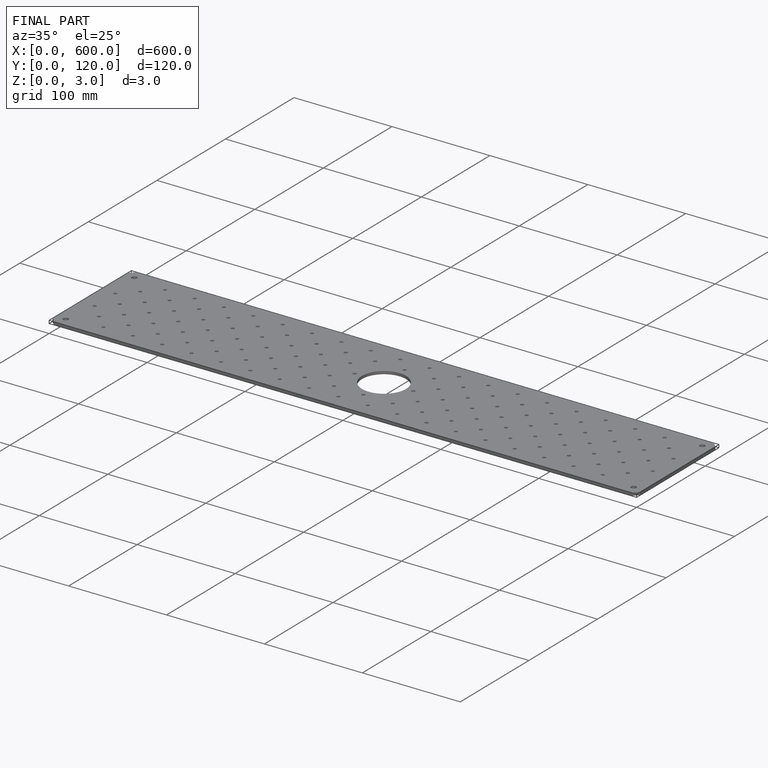
[diagram: finished part — iso view with bounding-box wireframe]
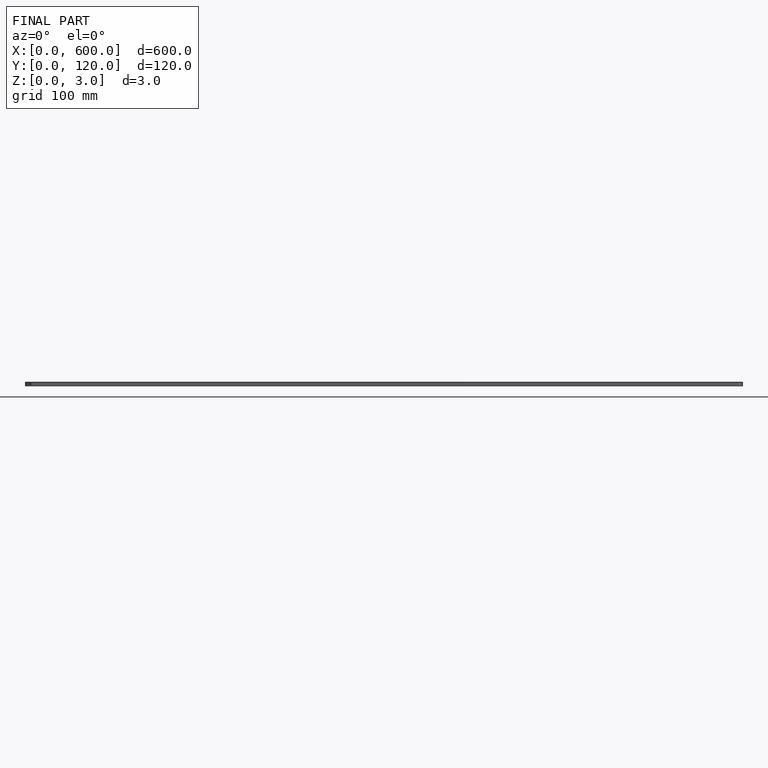
[diagram: finished part — front view with bounding-box wireframe]
